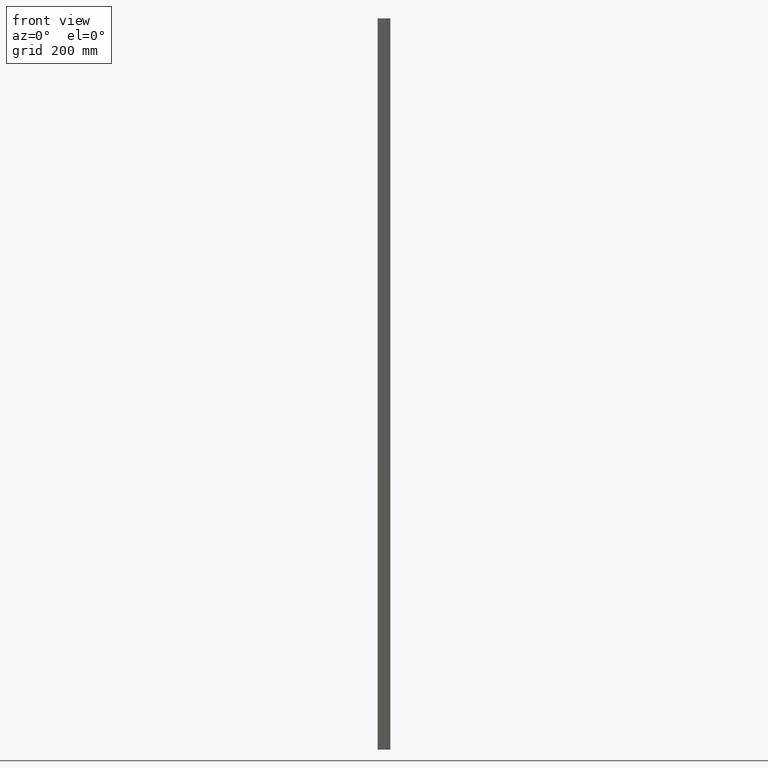
[diagram: clean part render]
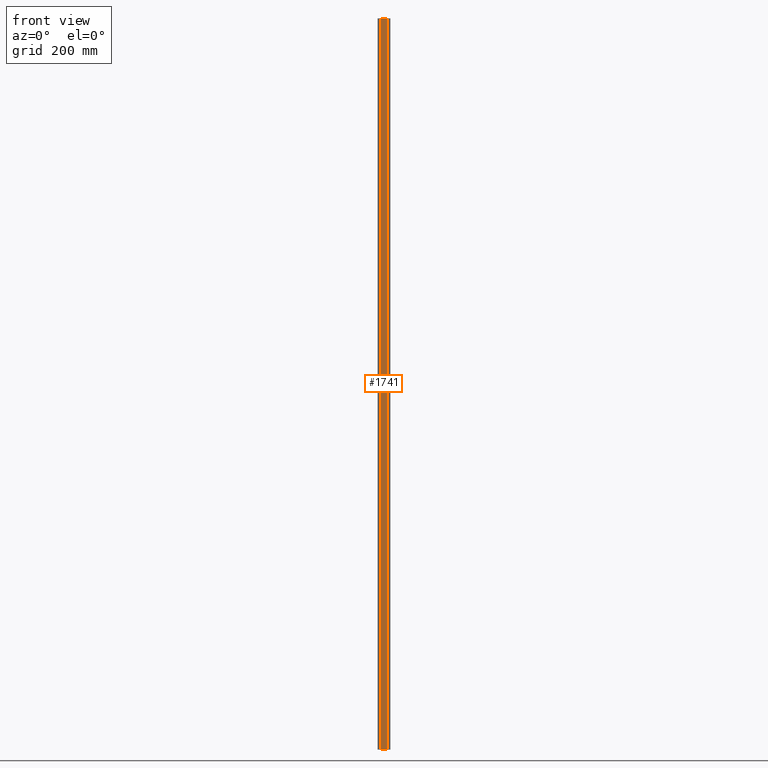
[diagram: same view with one face highlighted and labeled with its STEP entity id]
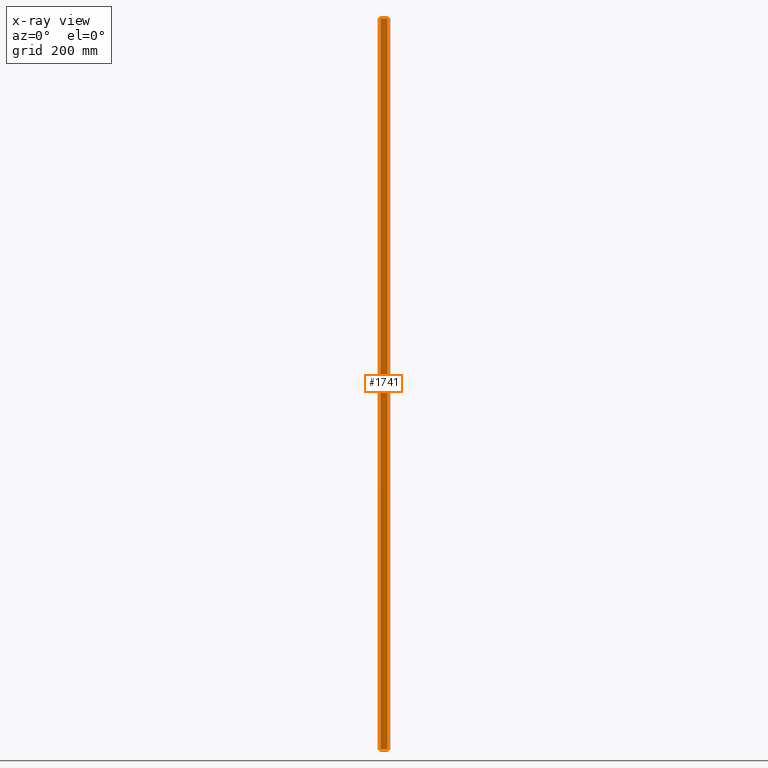
[diagram: x-ray of the same camera — body ghosted, the highlighted face saturated]
A machine part, front view. The second image highlights one B-rep face of the part: STEP entity #1741.
The next image is the same camera in x-ray: the body ghosted, the highlighted face saturated — about 0% of this face is hidden behind the body in this view.
In plain terms, the highlighted planar face has unit normal (0, 1, 0).
Its self-contained STEP definition (entity closure, byte-faithful):
#14 = VECTOR ( 'NONE', #360, 1000.000000000000000 ) ;
#79 = AXIS2_PLACEMENT_3D ( 'NONE', #1380, #1371, #1373 ) ;
#126 = VECTOR ( 'NONE', #983, 1000.000000000000000 ) ;
#189 = VECTOR ( 'NONE', #1249, 1000.000000000000000 ) ;
#244 = VECTOR ( 'NONE', #329, 1000.000000000000000 ) ;
#329 = DIRECTION ( 'NONE',  ( -0.0000000000000000000, -0.0000000000000000000, -1.000000000000000000 ) ) ;
#350 = LINE ( 'NONE', #351, #244 ) ;
#351 = CARTESIAN_POINT ( 'NONE',  ( 27.01884000813975100, 0.4599999999996131100, 300.0000000000000000 ) ) ;
#360 = DIRECTION ( 'NONE',  ( 1.000000000000000000, 0.0000000000000000000, 0.0000000000000000000 ) ) ;
#371 = LINE ( 'NONE', #404, #14 ) ;
#404 = CARTESIAN_POINT ( 'NONE',  ( 7.381159991860194200, 0.4599999999996131100, 0.0000000000000000000 ) ) ;
#681 = ORIENTED_EDGE ( 'NONE', *, *, #1691, .T. ) ;
#698 = ORIENTED_EDGE ( 'NONE', *, *, #1638, .T. ) ;
#724 = ORIENTED_EDGE ( 'NONE', *, *, #1670, .F. ) ;
#735 = ORIENTED_EDGE ( 'NONE', *, *, #1563, .F. ) ;
#769 = VERTEX_POINT ( 'NONE', #872 ) ;
#772 = VERTEX_POINT ( 'NONE', #891 ) ;
#850 = VERTEX_POINT ( 'NONE', #969 ) ;
#854 = EDGE_LOOP ( 'NONE', ( #681, #724, #735, #698 ) ) ;
#857 = VERTEX_POINT ( 'NONE', #941 ) ;
#872 = CARTESIAN_POINT ( 'NONE',  ( 27.01884000813975100, 0.4599999999996131100, 0.0000000000000000000 ) ) ;
#891 = CARTESIAN_POINT ( 'NONE',  ( 7.381159991860194200, 0.4599999999996131100, 0.0000000000000000000 ) ) ;
#941 = CARTESIAN_POINT ( 'NONE',  ( 27.01884000813975100, 0.4599999999996131100, 2000.000000000000000 ) ) ;
#950 = CARTESIAN_POINT ( 'NONE',  ( 0.03768049922007291700, 0.4599999999996135000, 2000.000000000000000 ) ) ;
#969 = CARTESIAN_POINT ( 'NONE',  ( 7.381159991860194200, 0.4599999999996131100, 2000.000000000000000 ) ) ;
#970 = LINE ( 'NONE', #950, #126 ) ;
#983 = DIRECTION ( 'NONE',  ( 1.000000000000000000, 0.0000000000000000000, 0.0000000000000000000 ) ) ;
#1201 = LINE ( 'NONE', #1252, #189 ) ;
#1249 = DIRECTION ( 'NONE',  ( -0.0000000000000000000, -0.0000000000000000000, -1.000000000000000000 ) ) ;
#1252 = CARTESIAN_POINT ( 'NONE',  ( 7.381159991860194200, 0.4599999999996131100, 300.0000000000000000 ) ) ;
#1371 = DIRECTION ( 'NONE',  ( 0.0000000000000000000, 1.000000000000000000, 0.0000000000000000000 ) ) ;
#1373 = DIRECTION ( 'NONE',  ( 0.0000000000000000000, -0.0000000000000000000, 1.000000000000000000 ) ) ;
#1380 = CARTESIAN_POINT ( 'NONE',  ( 7.381159991860194200, 0.4599999999996131100, 300.0000000000000000 ) ) ;
#1387 = FACE_OUTER_BOUND ( 'NONE', #854, .T. ) ;
#1412 = PLANE ( 'NONE',  #79 ) ;
#1563 = EDGE_CURVE ( 'NONE', #850, #857, #970, .T. ) ;
#1638 = EDGE_CURVE ( 'NONE', #850, #772, #1201, .T. ) ;
#1670 = EDGE_CURVE ( 'NONE', #857, #769, #350, .T. ) ;
#1691 = EDGE_CURVE ( 'NONE', #772, #769, #371, .T. ) ;
#1741 = ADVANCED_FACE ( 'NONE', ( #1387 ), #1412, .F. ) ;